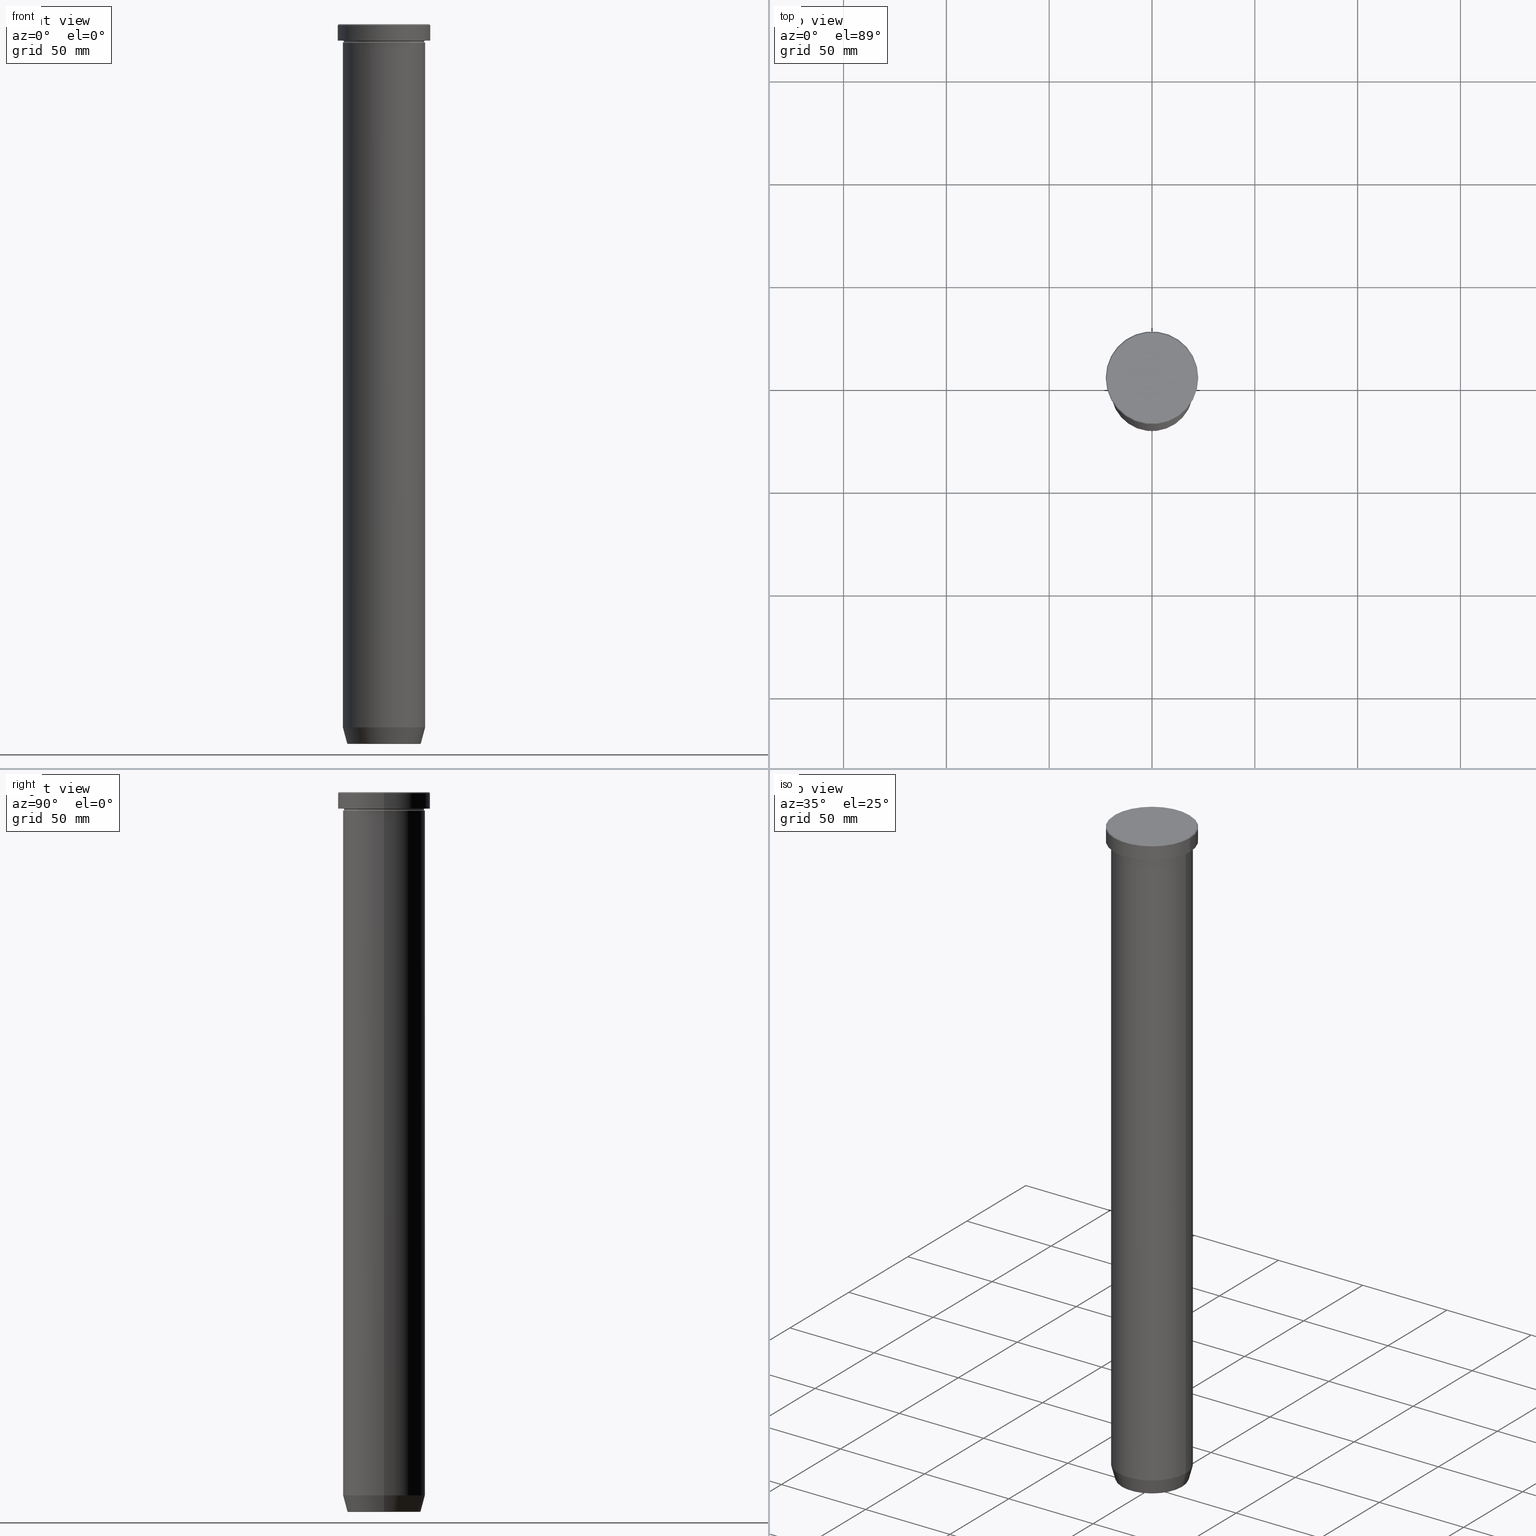
[diagram: canonical four-view strip — front | top / right | iso, engineering-drawing reading convention]
A machine part, canonical four-view strip (front | top / right | iso — engineering-drawing reading convention). The complete STEP part file that produces these views, byte-faithful:
ISO-10303-21;
HEADER;
FILE_DESCRIPTION (( 'STEP AP203' ),
    '1' );
FILE_NAME ('d82d.STEP',
    '2024-01-02T17:33:44',
    ( '' ),
    ( '' ),
    'SwSTEP 2.0',
    'SolidWorks 2019',
    '' );
FILE_SCHEMA (( 'CONFIG_CONTROL_DESIGN' ));
ENDSEC;

DATA;
#1 = CLOSED_SHELL ( 'NONE', ( #484, #367, #352, #125, #75, #54, #25, #116 ) ) ;
#2 = CIRCLE ( 'NONE', #387, 19.50000000000000000 ) ;
#3 = ORIENTED_EDGE ( 'NONE', *, *, #338, .F. ) ;
#4 = DATE_AND_TIME ( #55, #346 ) ;
#5 = CARTESIAN_POINT ( 'NONE',  ( 0.000000000000000000, 20.00000000000000000, -70.00000000000000000 ) ) ;
#6 = ADVANCED_FACE ( 'NONE', ( #50 ), #235, .F. ) ;
#7 = AXIS2_PLACEMENT_3D ( 'NONE', #592, #449, #589 ) ;
#8 = DIRECTION ( 'NONE',  ( -1.224646799147353207E-16, 1.000000000000000000, 0.000000000000000000 ) ) ;
#9 = DIRECTION ( 'NONE',  ( 0.000000000000000000, 0.000000000000000000, -1.000000000000000000 ) ) ;
#10 = ORIENTED_EDGE ( 'NONE', *, *, #45, .T. ) ;
#11 = PERSON_AND_ORGANIZATION_ROLE ( 'creator' ) ;
#12 = DIRECTION ( 'NONE',  ( -0.000000000000000000, -0.000000000000000000, 1.000000000000000000 ) ) ;
#13 = AXIS2_PLACEMENT_3D ( 'NONE', #409, #333, #94 ) ;
#14 = ADVANCED_FACE ( 'NONE', ( #391 ), #388, .T. ) ;
#15 = CALENDAR_DATE ( 2024, 2, 1 ) ;
#16 = CARTESIAN_POINT ( 'NONE',  ( 0.000000000000000000, 0.000000000000000000, -350.0000000000000568 ) ) ;
#17 = CONICAL_SURFACE ( 'NONE', #328, 21.99999999999997868, 0.7853981633974482790 ) ;
#18 = DIRECTION ( 'NONE',  ( -0.000000000000000000, -0.000000000000000000, 1.000000000000000000 ) ) ;
#19 = SHAPE_DEFINITION_REPRESENTATION ( #24, #594 ) ;
#20 = FACE_OUTER_BOUND ( 'NONE', #478, .T. ) ;
#21 = DIRECTION ( 'NONE',  ( -0.000000000000000000, -0.000000000000000000, 1.000000000000000000 ) ) ;
#22 = CONICAL_SURFACE ( 'NONE', #395, 17.85640646055101399, 0.2617993877991499629 ) ;
#23 = CARTESIAN_POINT ( 'NONE',  ( 0.000000000000000000, 0.000000000000000000, 0.000000000000000000 ) ) ;
#24 = PRODUCT_DEFINITION_SHAPE ( 'NONE', 'NONE',  #312 ) ;
#25 = ADVANCED_FACE ( 'NONE', ( #522 ), #124, .F. ) ;
#26 = CC_DESIGN_APPROVAL ( #390, ( #153 ) ) ;
#27 = CARTESIAN_POINT ( 'NONE',  ( 20.00000000000000355, 0.000000000000000000, 0.000000000000000000 ) ) ;
#28 = FACE_OUTER_BOUND ( 'NONE', #51, .T. ) ;
#29 = PERSON_AND_ORGANIZATION ( #422, #513 ) ;
#30 = ADVANCED_FACE ( 'NONE', ( #588 ), #113, .F. ) ;
#31 = ORIENTED_EDGE ( 'NONE', *, *, #212, .T. ) ;
#32 = CARTESIAN_POINT ( 'NONE',  ( 0.000000000000000000, 0.000000000000000000, -8.499999999999996447 ) ) ;
#33 = AXIS2_PLACEMENT_3D ( 'NONE', #59, #132, #240 ) ;
#34 = ORIENTED_EDGE ( 'NONE', *, *, #274, .F. ) ;
#35 = AXIS2_PLACEMENT_3D ( 'NONE', #36, #310, #318 ) ;
#36 = CARTESIAN_POINT ( 'NONE',  ( 0.000000000000000000, 0.000000000000000000, -342.0000000000000000 ) ) ;
#37 = CIRCLE ( 'NONE', #127, 20.00000000000000000 ) ;
#38 = AXIS2_PLACEMENT_3D ( 'NONE', #596, #468, #555 ) ;
#39 = ORIENTED_EDGE ( 'NONE', *, *, #530, .F. ) ;
#40 = DIRECTION ( 'NONE',  ( -0.000000000000000000, -0.000000000000000000, 1.000000000000000000 ) ) ;
#41 = ORIENTED_EDGE ( 'NONE', *, *, #491, .T. ) ;
#42 = ORIENTED_EDGE ( 'NONE', *, *, #587, .T. ) ;
#43 = LINE ( 'NONE', #224, #227 ) ;
#44 = ORIENTED_EDGE ( 'NONE', *, *, #109, .F. ) ;
#45 = EDGE_CURVE ( 'NONE', #420, #548, #532, .T. ) ;
#46 =( NAMED_UNIT ( * ) SI_UNIT ( $, .STERADIAN. ) SOLID_ANGLE_UNIT ( ) );
#47 = AXIS2_PLACEMENT_3D ( 'NONE', #598, #549, #415 ) ;
#48 = CARTESIAN_POINT ( 'NONE',  ( 21.99999999999997868, 2.724839128102859413E-15, 0.000000000000000000 ) ) ;
#49 = CIRCLE ( 'NONE', #512, 20.00000000000000000 ) ;
#50 = FACE_OUTER_BOUND ( 'NONE', #521, .T. ) ;
#51 = EDGE_LOOP ( 'NONE', ( #403, #275, #431, #372 ) ) ;
#52 = CARTESIAN_POINT ( 'NONE',  ( 20.00000000000000000, 2.449293598294706513E-15, -8.499999999999998224 ) ) ;
#53 = DIRECTION ( 'NONE',  ( -0.7071067811865474617, 0.000000000000000000, -0.7071067811865474617 ) ) ;
#54 = ADVANCED_FACE ( 'NONE', ( #418 ), #296, .T. ) ;
#55 = CALENDAR_DATE ( 2024, 2, 1 ) ;
#56 = DIRECTION ( 'NONE',  ( -0.000000000000000000, -0.000000000000000000, 1.000000000000000000 ) ) ;
#57 = CIRCLE ( 'NONE', #464, 17.47274296656153680 ) ;
#58 = DIRECTION ( 'NONE',  ( -1.000000000000000000, -1.224646799147349509E-16, 0.000000000000000000 ) ) ;
#59 = CARTESIAN_POINT ( 'NONE',  ( 0.000000000000000000, 0.000000000000000000, -7.999999999999998224 ) ) ;
#60 = ORIENTED_EDGE ( 'NONE', *, *, #542, .F. ) ;
#61 = DIRECTION ( 'NONE',  ( -1.000000000000000000, 0.000000000000000000, 0.000000000000000000 ) ) ;
#62 = CARTESIAN_POINT ( 'NONE',  ( 0.000000000000000000, 0.000000000000000000, 0.000000000000000000 ) ) ;
#63 = VERTEX_POINT ( 'NONE', #281 ) ;
#64 = EDGE_LOOP ( 'NONE', ( #306, #516, #213, #96 ) ) ;
#65 = FACE_OUTER_BOUND ( 'NONE', #181, .T. ) ;
#66 = ORIENTED_EDGE ( 'NONE', *, *, #45, .F. ) ;
#67 = DIRECTION ( 'NONE',  ( -0.000000000000000000, -0.000000000000000000, 1.000000000000000000 ) ) ;
#68 = EDGE_CURVE ( 'NONE', #151, #63, #553, .T. ) ;
#69 = ORIENTED_EDGE ( 'NONE', *, *, #359, .T. ) ;
#70 = DIRECTION ( 'NONE',  ( -1.000000000000000000, 0.000000000000000000, 0.000000000000000000 ) ) ;
#71 = CIRCLE ( 'NONE', #190, 0.5000000000000004441 ) ;
#72 = CARTESIAN_POINT ( 'NONE',  ( 17.95570587970608045, 0.000000000000000000, -349.6294095225512706 ) ) ;
#73 = VERTEX_POINT ( 'NONE', #335 ) ;
#74 = CARTESIAN_POINT ( 'NONE',  ( -20.00000000000000355, 2.449293598294706907E-15, 0.000000000000000000 ) ) ;
#75 = ADVANCED_FACE ( 'NONE', ( #330 ), #558, .T. ) ;
#76 = CARTESIAN_POINT ( 'NONE',  ( 20.00000000000000000, 0.000000000000000000, -70.00000000000000000 ) ) ;
#77 = DATE_TIME_ROLE ( 'classification_date' ) ;
#78 = ORIENTED_EDGE ( 'NONE', *, *, #458, .T. ) ;
#79 = FACE_OUTER_BOUND ( 'NONE', #457, .T. ) ;
#80 = CIRCLE ( 'NONE', #209, 20.00000000000000000 ) ;
#81 = CARTESIAN_POINT ( 'NONE',  ( 17.47274296656153680, 0.000000000000000000, -350.0000000000000568 ) ) ;
#82 = LOCAL_TIME ( 18, 33, 44.00000000000000000, #140 ) ;
#83 = DIRECTION ( 'NONE',  ( 1.000000000000000000, 0.000000000000000000, 0.000000000000000000 ) ) ;
#84 = EDGE_CURVE ( 'NONE', #147, #99, #188, .T. ) ;
#85 = ORIENTED_EDGE ( 'NONE', *, *, #450, .F. ) ;
#86 = DIRECTION ( 'NONE',  ( -1.000000000000000000, 0.000000000000000000, 0.000000000000000000 ) ) ;
#87 = VECTOR ( 'NONE', #477, 1000.000000000000000 ) ;
#88 = ORIENTED_EDGE ( 'NONE', *, *, #248, .F. ) ;
#89 = CARTESIAN_POINT ( 'NONE',  ( 0.000000000000000000, 0.000000000000000000, -342.0000000000000000 ) ) ;
#90 = VECTOR ( 'NONE', #421, 1000.000000000000000 ) ;
#91 = DIRECTION ( 'NONE',  ( -0.000000000000000000, -0.000000000000000000, 1.000000000000000000 ) ) ;
#92 = EDGE_CURVE ( 'NONE', #128, #547, #159, .T. ) ;
#93 = APPROVAL_ROLE ( '' ) ;
#94 = DIRECTION ( 'NONE',  ( 1.000000000000000000, 0.000000000000000000, 0.000000000000000000 ) ) ;
#95 = AXIS2_PLACEMENT_3D ( 'NONE', #230, #552, #425 ) ;
#96 = ORIENTED_EDGE ( 'NONE', *, *, #518, .T. ) ;
#97 = CARTESIAN_POINT ( 'NONE',  ( 22.50000000000000000, 0.000000000000000000, -7.999999999999998224 ) ) ;
#98 = CARTESIAN_POINT ( 'NONE',  ( 0.000000000000000000, 0.000000000000000000, -8.499999999999998224 ) ) ;
#99 = VERTEX_POINT ( 'NONE', #195 ) ;
#100 = ADVANCED_FACE ( 'NONE', ( #141 ), #236, .T. ) ;
#101 = ORIENTED_EDGE ( 'NONE', *, *, #568, .F. ) ;
#102 = DIRECTION ( 'NONE',  ( -0.000000000000000000, -0.000000000000000000, 1.000000000000000000 ) ) ;
#103 = CC_DESIGN_DATE_AND_TIME_ASSIGNMENT ( #487, #77, ( #153 ) ) ;
#104 = AXIS2_PLACEMENT_3D ( 'NONE', #304, #18, #342 ) ;
#105 = ORIENTED_EDGE ( 'NONE', *, *, #378, .T. ) ;
#106 = PERSON_AND_ORGANIZATION_ROLE ( 'design_supplier' ) ;
#107 = DIRECTION ( 'NONE',  ( -0.000000000000000000, -0.000000000000000000, 1.000000000000000000 ) ) ;
#108 = VECTOR ( 'NONE', #506, 1000.000000000000114 ) ;
#109 = EDGE_CURVE ( 'NONE', #380, #451, #263, .T. ) ;
#110 = CARTESIAN_POINT ( 'NONE',  ( 0.000000000000000000, 0.000000000000000000, -7.999999999999998224 ) ) ;
#111 = DIRECTION ( 'NONE',  ( -1.000000000000000000, 0.000000000000000000, 0.000000000000000000 ) ) ;
#112 = EDGE_LOOP ( 'NONE', ( #226, #414 ) ) ;
#113 = TOROIDAL_SURFACE ( 'NONE', #200, 20.00000000000000000, 0.5000000000000000000 ) ;
#114 = AXIS2_PLACEMENT_3D ( 'NONE', #511, #499, #243 ) ;
#115 = DIRECTION ( 'NONE',  ( -0.000000000000000000, -0.000000000000000000, 1.000000000000000000 ) ) ;
#116 = ADVANCED_FACE ( 'NONE', ( #199 ), #544, .T. ) ;
#117 = SECURITY_CLASSIFICATION_LEVEL ( 'unclassified' ) ;
#118 = CARTESIAN_POINT ( 'NONE',  ( 0.000000000000000000, 0.000000000000000000, -8.499999999999998224 ) ) ;
#119 = CARTESIAN_POINT ( 'NONE',  ( -20.00000000000000000, 0.000000000000000000, -7.999999999999998224 ) ) ;
#120 = EDGE_LOOP ( 'NONE', ( #569, #276, #44, #197 ) ) ;
#121 = EDGE_LOOP ( 'NONE', ( #406, #31 ) ) ;
#122 = DIRECTION ( 'NONE',  ( 1.000000000000000000, 0.000000000000000000, 0.000000000000000000 ) ) ;
#123 = AXIS2_PLACEMENT_3D ( 'NONE', #278, #192, #507 ) ;
#124 = PLANE ( 'NONE',  #201 ) ;
#125 = ADVANCED_FACE ( 'NONE', ( #366 ), #599, .F. ) ;
#126 = CARTESIAN_POINT ( 'NONE',  ( 0.000000000000000000, 0.000000000000000000, 0.000000000000000000 ) ) ;
#127 = AXIS2_PLACEMENT_3D ( 'NONE', #268, #483, #169 ) ;
#128 = VERTEX_POINT ( 'NONE', #189 ) ;
#129 =( NAMED_UNIT ( * ) PLANE_ANGLE_UNIT ( ) SI_UNIT ( $, .RADIAN. ) );
#130 = APPLICATION_PROTOCOL_DEFINITION ( 'international standard', 'config_control_design', 1994, #453 ) ;
#131 = EDGE_LOOP ( 'NONE', ( #60, #299, #497, #466 ) ) ;
#132 = DIRECTION ( 'NONE',  ( -0.000000000000000000, -0.000000000000000000, 1.000000000000000000 ) ) ;
#133 = EDGE_CURVE ( 'NONE', #267, #265, #377, .T. ) ;
#134 = AXIS2_PLACEMENT_3D ( 'NONE', #543, #447, #122 ) ;
#135 = ORIENTED_EDGE ( 'NONE', *, *, #241, .F. ) ;
#136 = TOROIDAL_SURFACE ( 'NONE', #467, 20.00000000000000000, 0.5000000000000000000 ) ;
#137 = DIRECTION ( 'NONE',  ( 1.000000000000000000, 0.000000000000000000, 0.000000000000000000 ) ) ;
#138 = LOCAL_TIME ( 18, 33, 44.00000000000000000, #585 ) ;
#139 = ORIENTED_EDGE ( 'NONE', *, *, #386, .T. ) ;
#140 = COORDINATED_UNIVERSAL_TIME_OFFSET ( 1, 0, .AHEAD. ) ;
#141 = FACE_OUTER_BOUND ( 'NONE', #112, .T. ) ;
#142 = ORIENTED_EDGE ( 'NONE', *, *, #262, .F. ) ;
#143 = CARTESIAN_POINT ( 'NONE',  ( 17.85640646055101399, 0.000000000000000000, -350.0000000000000568 ) ) ;
#144 = CARTESIAN_POINT ( 'NONE',  ( 0.000000000000000000, 0.000000000000000000, 0.000000000000000000 ) ) ;
#145 = AXIS2_PLACEMENT_3D ( 'NONE', #254, #21, #208 ) ;
#146 = AXIS2_PLACEMENT_3D ( 'NONE', #214, #394, #314 ) ;
#147 = VERTEX_POINT ( 'NONE', #273 ) ;
#148 = EDGE_CURVE ( 'NONE', #364, #362, #284, .T. ) ;
#149 = DATE_AND_TIME ( #294, #138 ) ;
#150 = CARTESIAN_POINT ( 'NONE',  ( 0.000000000000000000, 0.000000000000000000, 0.000000000000000000 ) ) ;
#151 = VERTEX_POINT ( 'NONE', #97 ) ;
#152 = CIRCLE ( 'NONE', #353, 22.50000000000000000 ) ;
#153 = SECURITY_CLASSIFICATION ( '', '', #117 ) ;
#154 = COORDINATED_UNIVERSAL_TIME_OFFSET ( 1, 0, .AHEAD. ) ;
#155 = CARTESIAN_POINT ( 'NONE',  ( 0.000000000000000000, 22.50000000000000000, -7.999999999999998224 ) ) ;
#156 = ORIENTED_EDGE ( 'NONE', *, *, #293, .T. ) ;
#157 = LINE ( 'NONE', #343, #87 ) ;
#158 = EDGE_CURVE ( 'NONE', #178, #364, #336, .T. ) ;
#159 = CIRCLE ( 'NONE', #326, 0.5000000000000004441 ) ;
#160 = ORIENTED_EDGE ( 'NONE', *, *, #133, .F. ) ;
#161 = DIRECTION ( 'NONE',  ( 0.000000000000000000, -1.000000000000000000, 0.000000000000000000 ) ) ;
#162 = ORIENTED_EDGE ( 'NONE', *, *, #168, .T. ) ;
#163 = DIRECTION ( 'NONE',  ( 1.000000000000000000, 0.000000000000000000, 0.000000000000000000 ) ) ;
#164 = PRODUCT ( 'd82d', 'd82d', '', ( #509 ) ) ;
#165 = EDGE_LOOP ( 'NONE', ( #490, #523, #160, #347 ) ) ;
#166 = DIRECTION ( 'NONE',  ( 1.000000000000000000, 0.000000000000000000, 0.000000000000000000 ) ) ;
#167 = CIRCLE ( 'NONE', #438, 21.99999999999997868 ) ;
#168 = EDGE_CURVE ( 'NONE', #364, #178, #167, .T. ) ;
#169 = DIRECTION ( 'NONE',  ( 1.000000000000000000, 0.000000000000000000, 0.000000000000000000 ) ) ;
#170 = DATE_TIME_ROLE ( 'creation_date' ) ;
#171 = CC_DESIGN_APPROVAL ( #203, ( #289 ) ) ;
#172 = ORIENTED_EDGE ( 'NONE', *, *, #92, .T. ) ;
#173 = CYLINDRICAL_SURFACE ( 'NONE', #217, 20.00000000000000355 ) ;
#174 = ORIENTED_EDGE ( 'NONE', *, *, #222, .T. ) ;
#175 = CARTESIAN_POINT ( 'NONE',  ( 0.000000000000000000, 0.000000000000000000, -349.6294095225512706 ) ) ;
#176 = CARTESIAN_POINT ( 'NONE',  ( 0.000000000000000000, 3.673940397442060124E-14, -350.0000000000000568 ) ) ;
#177 = ADVANCED_FACE ( 'NONE', ( #376 ), #202, .T. ) ;
#178 = VERTEX_POINT ( 'NONE', #48 ) ;
#179 = CARTESIAN_POINT ( 'NONE',  ( -21.99999999999997868, 0.000000000000000000, 0.000000000000000000 ) ) ;
#180 = AXIS2_PLACEMENT_3D ( 'NONE', #5, #505, #374 ) ;
#181 = EDGE_LOOP ( 'NONE', ( #162, #361 ) ) ;
#182 = PERSON_AND_ORGANIZATION ( #422, #513 ) ;
#183 = DIRECTION ( 'NONE',  ( 0.000000000000000000, -0.000000000000000000, 1.000000000000000000 ) ) ;
#184 = EDGE_CURVE ( 'NONE', #221, #420, #597, .T. ) ;
#185 = PERSON_AND_ORGANIZATION_ROLE ( 'design_owner' ) ;
#186 = EDGE_LOOP ( 'NONE', ( #41, #503, #357, #3 ) ) ;
#187 = CARTESIAN_POINT ( 'NONE',  ( 0.000000000000000000, 0.000000000000000000, -350.0000000000000568 ) ) ;
#188 = CIRCLE ( 'NONE', #566, 20.00000000000000000 ) ;
#189 = CARTESIAN_POINT ( 'NONE',  ( 19.50000000000000000, 0.000000000000000000, -8.499999999999996447 ) ) ;
#190 = AXIS2_PLACEMENT_3D ( 'NONE', #586, #355, #541 ) ;
#191 = PERSON_AND_ORGANIZATION ( #422, #513 ) ;
#192 = DIRECTION ( 'NONE',  ( -0.000000000000000000, -0.000000000000000000, 1.000000000000000000 ) ) ;
#193 = EDGE_LOOP ( 'NONE', ( #559, #69, #42, #34 ) ) ;
#194 = DIRECTION ( 'NONE',  ( 1.000000000000000000, 0.000000000000000000, 0.000000000000000000 ) ) ;
#195 = CARTESIAN_POINT ( 'NONE',  ( 20.00000000000000000, 0.000000000000000000, -70.00000000000000000 ) ) ;
#196 = EDGE_CURVE ( 'NONE', #547, #539, #454, .T. ) ;
#197 = ORIENTED_EDGE ( 'NONE', *, *, #222, .F. ) ;
#198 = APPROVAL_ROLE ( '' ) ;
#199 = FACE_OUTER_BOUND ( 'NONE', #561, .T. ) ;
#200 = AXIS2_PLACEMENT_3D ( 'NONE', #118, #486, #412 ) ;
#201 = AXIS2_PLACEMENT_3D ( 'NONE', #176, #183, #448 ) ;
#202 = CONICAL_SURFACE ( 'NONE', #534, 21.99999999999997868, 0.7853981633974482790 ) ;
#203 = APPROVAL ( #572, 'NEUR�EN�' ) ;
#204 = DIRECTION ( 'NONE',  ( 1.000000000000000000, 0.000000000000000000, 0.000000000000000000 ) ) ;
#205 = CALENDAR_DATE ( 2024, 2, 1 ) ;
#206 = APPROVAL ( #504, 'NEUR�EN�' ) ;
#207 = DIRECTION ( 'NONE',  ( 1.000000000000000000, 0.000000000000000000, 0.000000000000000000 ) ) ;
#208 = DIRECTION ( 'NONE',  ( 1.000000000000000000, 0.000000000000000000, 0.000000000000000000 ) ) ;
#209 = AXIS2_PLACEMENT_3D ( 'NONE', #253, #435, #385 ) ;
#210 = CARTESIAN_POINT ( 'NONE',  ( -20.00000000000000000, 0.000000000000000000, -8.499999999999998224 ) ) ;
#211 = CARTESIAN_POINT ( 'NONE',  ( 0.000000000000000000, 0.000000000000000000, -8.999999999999998224 ) ) ;
#212 = EDGE_CURVE ( 'NONE', #451, #380, #575, .T. ) ;
#213 = ORIENTED_EDGE ( 'NONE', *, *, #274, .T. ) ;
#214 = CARTESIAN_POINT ( 'NONE',  ( 0.000000000000000000, 0.000000000000000000, -350.0000000000000568 ) ) ;
#215 = COORDINATED_UNIVERSAL_TIME_OFFSET ( 1, 0, .AHEAD. ) ;
#216 = AXIS2_PLACEMENT_3D ( 'NONE', #577, #396, #540 ) ;
#217 = AXIS2_PLACEMENT_3D ( 'NONE', #354, #488, #83 ) ;
#218 = EDGE_LOOP ( 'NONE', ( #535, #246, #573, #255 ) ) ;
#219 = DIRECTION ( 'NONE',  ( -0.000000000000000000, -0.000000000000000000, 1.000000000000000000 ) ) ;
#220 = DIRECTION ( 'NONE',  ( 1.000000000000000000, 0.000000000000000000, 0.000000000000000000 ) ) ;
#221 = VERTEX_POINT ( 'NONE', #580 ) ;
#222 = EDGE_CURVE ( 'NONE', #479, #380, #365, .T. ) ;
#223 = DIRECTION ( 'NONE',  ( 1.000000000000000000, 0.000000000000000000, 0.000000000000000000 ) ) ;
#224 = CARTESIAN_POINT ( 'NONE',  ( 21.99999999999997868, 2.694222958124174048E-15, 0.000000000000000000 ) ) ;
#225 = CIRCLE ( 'NONE', #344, 19.50000000000000000 ) ;
#226 = ORIENTED_EDGE ( 'NONE', *, *, #491, .F. ) ;
#227 = VECTOR ( 'NONE', #350, 1000.000000000000114 ) ;
#228 = ADVANCED_FACE ( 'NONE', ( #525, #20 ), #389, .T. ) ;
#229 = APPROVAL_PERSON_ORGANIZATION ( #321, #206, #93 ) ;
#230 = CARTESIAN_POINT ( 'NONE',  ( 0.000000000000000000, 0.000000000000000000, -349.5000000000000568 ) ) ;
#231 = EDGE_LOOP ( 'NONE', ( #39, #444, #174, #301 ) ) ;
#232 = CARTESIAN_POINT ( 'NONE',  ( -20.00000000000000000, 2.449293598294706513E-15, -70.00000000000000000 ) ) ;
#233 = DIRECTION ( 'NONE',  ( 1.000000000000000000, 0.000000000000000000, 0.000000000000000000 ) ) ;
#234 = APPROVAL_DATE_TIME ( #4, #206 ) ;
#235 = TOROIDAL_SURFACE ( 'NONE', #145, 20.00000000000000000, 0.5000000000000000000 ) ;
#236 = PLANE ( 'NONE',  #180 ) ;
#237 = AXIS2_PLACEMENT_3D ( 'NONE', #211, #472, #207 ) ;
#238 = EDGE_LOOP ( 'NONE', ( #501, #311, #269, #527 ) ) ;
#239 = DIRECTION ( 'NONE',  ( -0.000000000000000000, -0.000000000000000000, 1.000000000000000000 ) ) ;
#240 = DIRECTION ( 'NONE',  ( 1.000000000000000000, 0.000000000000000000, 0.000000000000000000 ) ) ;
#241 = EDGE_CURVE ( 'NONE', #128, #479, #2, .T. ) ;
#242 = CC_DESIGN_APPROVAL ( #206, ( #312 ) ) ;
#243 = DIRECTION ( 'NONE',  ( -1.000000000000000000, 0.000000000000000000, -0.000000000000000000 ) ) ;
#244 = PERSON_AND_ORGANIZATION ( #422, #513 ) ;
#245 = DIRECTION ( 'NONE',  ( 0.000000000000000000, 0.000000000000000000, -1.000000000000000000 ) ) ;
#246 = ORIENTED_EDGE ( 'NONE', *, *, #568, .T. ) ;
#247 = CIRCLE ( 'NONE', #146, 17.47274296656153680 ) ;
#248 = EDGE_CURVE ( 'NONE', #479, #128, #225, .T. ) ;
#249 = ORIENTED_EDGE ( 'NONE', *, *, #196, .T. ) ;
#250 = DIRECTION ( 'NONE',  ( 0.000000000000000000, -0.000000000000000000, 1.000000000000000000 ) ) ;
#251 = CC_DESIGN_PERSON_AND_ORGANIZATION_ASSIGNMENT ( #383, #106, ( #289 ) ) ;
#252 = PERSON_AND_ORGANIZATION_ROLE ( 'classification_officer' ) ;
#253 = CARTESIAN_POINT ( 'NONE',  ( 0.000000000000000000, 0.000000000000000000, -70.00000000000000000 ) ) ;
#254 = CARTESIAN_POINT ( 'NONE',  ( 0.000000000000000000, 0.000000000000000000, -8.499999999999996447 ) ) ;
#255 = ORIENTED_EDGE ( 'NONE', *, *, #348, .F. ) ;
#256 = CARTESIAN_POINT ( 'NONE',  ( 22.50000000000000000, 0.000000000000000000, 0.000000000000000000 ) ) ;
#257 = AXIS2_PLACEMENT_3D ( 'NONE', #428, #161, #520 ) ;
#258 = LINE ( 'NONE', #256, #519 ) ;
#259 = EDGE_CURVE ( 'NONE', #441, #267, #272, .T. ) ;
#260 = DIRECTION ( 'NONE',  ( 1.000000000000000000, 0.000000000000000000, 0.000000000000000000 ) ) ;
#261 = DIRECTION ( 'NONE',  ( -0.000000000000000000, -0.000000000000000000, 1.000000000000000000 ) ) ;
#262 = EDGE_CURVE ( 'NONE', #63, #151, #473, .T. ) ;
#263 = CIRCLE ( 'NONE', #533, 20.00000000000000000 ) ;
#264 = CYLINDRICAL_SURFACE ( 'NONE', #134, 22.50000000000000000 ) ;
#265 = VERTEX_POINT ( 'NONE', #302 ) ;
#266 = CARTESIAN_POINT ( 'NONE',  ( -22.50000000000000000, 2.755455298081544778E-15, 0.000000000000000000 ) ) ;
#267 = VERTEX_POINT ( 'NONE', #72 ) ;
#268 = CARTESIAN_POINT ( 'NONE',  ( 0.000000000000000000, 0.000000000000000000, -70.00000000000000000 ) ) ;
#269 = ORIENTED_EDGE ( 'NONE', *, *, #587, .F. ) ;
#270 = CARTESIAN_POINT ( 'NONE',  ( -20.00000000000000000, 2.449293598294706513E-15, 0.000000000000000000 ) ) ;
#271 = AXIS2_PLACEMENT_3D ( 'NONE', #155, #392, #381 ) ;
#272 = CIRCLE ( 'NONE', #257, 0.5000000000000004441 ) ;
#273 = CARTESIAN_POINT ( 'NONE',  ( -20.00000000000000000, 2.449293598294706513E-15, -70.00000000000000000 ) ) ;
#274 = EDGE_CURVE ( 'NONE', #151, #73, #258, .T. ) ;
#275 = ORIENTED_EDGE ( 'NONE', *, *, #168, .F. ) ;
#276 = ORIENTED_EDGE ( 'NONE', *, *, #530, .T. ) ;
#277 = DIRECTION ( 'NONE',  ( 0.000000000000000000, 0.000000000000000000, -1.000000000000000000 ) ) ;
#278 = CARTESIAN_POINT ( 'NONE',  ( 0.000000000000000000, 0.000000000000000000, -349.6294095225512706 ) ) ;
#279 = ORIENTED_EDGE ( 'NONE', *, *, #133, .T. ) ;
#280 = FACE_OUTER_BOUND ( 'NONE', #186, .T. ) ;
#281 = CARTESIAN_POINT ( 'NONE',  ( -22.50000000000000000, 2.755455298081544778E-15, -7.999999999999998224 ) ) ;
#283 = ORIENTED_EDGE ( 'NONE', *, *, #331, .T. ) ;
#282 = ADVANCED_FACE ( 'NONE', ( #440 ), #446, .F. ) ;
#284 = LINE ( 'NONE', #288, #285 ) ;
#285 = VECTOR ( 'NONE', #53, 1000.000000000000114 ) ;
#286 = ORIENTED_EDGE ( 'NONE', *, *, #92, .F. ) ;
#287 = CARTESIAN_POINT ( 'NONE',  ( -20.00000000000000355, 2.449293598294706907E-15, -342.0000000000000000 ) ) ;
#288 = CARTESIAN_POINT ( 'NONE',  ( -21.99999999999997868, 0.000000000000000000, 0.000000000000000000 ) ) ;
#289 = PRODUCT_DEFINITION_FORMATION_WITH_SPECIFIED_SOURCE ( 'LIBOVOLN�', '', #164, .NOT_KNOWN. ) ;
#290 = ORIENTED_EDGE ( 'NONE', *, *, #68, .F. ) ;
#291 = PERSON_AND_ORGANIZATION ( #422, #513 ) ;
#292 = DIRECTION ( 'NONE',  ( 1.000000000000000000, 0.000000000000000000, 0.000000000000000000 ) ) ;
#293 = EDGE_CURVE ( 'NONE', #265, #579, #295, .T. ) ;
#294 = CALENDAR_DATE ( 2024, 2, 1 ) ;
#295 = LINE ( 'NONE', #349, #305 ) ;
#296 = CONICAL_SURFACE ( 'NONE', #445, 17.85640646055101399, 0.2617993877991499629 ) ;
#297 = VECTOR ( 'NONE', #261, 1000.000000000000000 ) ;
#298 = ORIENTED_EDGE ( 'NONE', *, *, #293, .F. ) ;
#299 = ORIENTED_EDGE ( 'NONE', *, *, #84, .T. ) ;
#300 = DIRECTION ( 'NONE',  ( 1.000000000000000000, 0.000000000000000000, 0.000000000000000000 ) ) ;
#301 = ORIENTED_EDGE ( 'NONE', *, *, #212, .F. ) ;
#302 = CARTESIAN_POINT ( 'NONE',  ( -17.95570587970608045, 2.324116685748021371E-15, -349.6294095225512706 ) ) ;
#303 = ADVANCED_FACE ( 'NONE', ( #514 ), #437, .T. ) ;
#304 = CARTESIAN_POINT ( 'NONE',  ( 0.000000000000000000, 0.000000000000000000, -7.999999999999998224 ) ) ;
#305 = VECTOR ( 'NONE', #481, 1000.000000000000114 ) ;
#306 = ORIENTED_EDGE ( 'NONE', *, *, #359, .F. ) ;
#307 = ORIENTED_EDGE ( 'NONE', *, *, #331, .F. ) ;
#308 = CARTESIAN_POINT ( 'NONE',  ( 0.000000000000000000, 0.000000000000000000, -0.5000000000000213163 ) ) ;
#309 = CIRCLE ( 'NONE', #456, 20.00000000000000355 ) ;
#310 = DIRECTION ( 'NONE',  ( -0.000000000000000000, -0.000000000000000000, 1.000000000000000000 ) ) ;
#311 = ORIENTED_EDGE ( 'NONE', *, *, #411, .T. ) ;
#312 = PRODUCT_DEFINITION ( 'NEZN�M�', '', #289, #564 ) ;
#313 = DATE_AND_TIME ( #205, #82 ) ;
#314 = DIRECTION ( 'NONE',  ( 1.000000000000000000, 0.000000000000000000, 0.000000000000000000 ) ) ;
#315 = EDGE_LOOP ( 'NONE', ( #298, #78, #550, #101 ) ) ;
#316 = CLOSED_SHELL ( 'NONE', ( #177, #30, #6, #581, #14, #100, #322, #393, #228, #303, #508, #282, #470 ) ) ;
#317 = AXIS2_PLACEMENT_3D ( 'NONE', #62, #250, #300 ) ;
#318 = DIRECTION ( 'NONE',  ( 1.000000000000000000, 0.000000000000000000, 0.000000000000000000 ) ) ;
#319 = AXIS2_PLACEMENT_3D ( 'NONE', #52, #8, #58 ) ;
#320 = DIRECTION ( 'NONE',  ( 0.000000000000000000, 0.000000000000000000, -1.000000000000000000 ) ) ;
#321 = PERSON_AND_ORGANIZATION ( #422, #513 ) ;
#322 = ADVANCED_FACE ( 'NONE', ( #65 ), #345, .T. ) ;
#323 = VERTEX_POINT ( 'NONE', #384 ) ;
#324 = EDGE_LOOP ( 'NONE', ( #436, #135, #172, #249 ) ) ;
#325 = CYLINDRICAL_SURFACE ( 'NONE', #47, 20.00000000000000000 ) ;
#326 = AXIS2_PLACEMENT_3D ( 'NONE', #339, #563, #9 ) ;
#327 = CARTESIAN_POINT ( 'NONE',  ( 0.000000000000000000, 0.000000000000000000, -70.00000000000000000 ) ) ;
#328 = AXIS2_PLACEMENT_3D ( 'NONE', #126, #320, #485 ) ;
#329 = CARTESIAN_POINT ( 'NONE',  ( 20.00000000000000000, 0.000000000000000000, -8.999999999999998224 ) ) ;
#330 = FACE_OUTER_BOUND ( 'NONE', #218, .T. ) ;
#331 = EDGE_CURVE ( 'NONE', #441, #323, #57, .T. ) ;
#332 = CARTESIAN_POINT ( 'NONE',  ( -20.00000000000000000, 2.449293598294706513E-15, -8.999999999999998224 ) ) ;
#333 = DIRECTION ( 'NONE',  ( -0.000000000000000000, -0.000000000000000000, 1.000000000000000000 ) ) ;
#334 = ORIENTED_EDGE ( 'NONE', *, *, #426, .T. ) ;
#335 = CARTESIAN_POINT ( 'NONE',  ( 22.50000000000000000, 0.000000000000000000, -0.5000000000000213163 ) ) ;
#336 = CIRCLE ( 'NONE', #427, 21.99999999999997868 ) ;
#337 = PERSON_AND_ORGANIZATION ( #422, #513 ) ;
#338 = EDGE_CURVE ( 'NONE', #99, #547, #157, .T. ) ;
#339 = CARTESIAN_POINT ( 'NONE',  ( 20.00000000000000000, 0.000000000000000000, -8.499999999999996447 ) ) ;
#340 = MANIFOLD_SOLID_BREP ( 'Zaoblit4', #1 ) ;
#341 = APPROVAL_STATUS ( 'not_yet_approved' ) ;
#342 = DIRECTION ( 'NONE',  ( 1.000000000000000000, 0.000000000000000000, 0.000000000000000000 ) ) ;
#343 = CARTESIAN_POINT ( 'NONE',  ( 20.00000000000000000, 0.000000000000000000, 0.000000000000000000 ) ) ;
#344 = AXIS2_PLACEMENT_3D ( 'NONE', #517, #582, #163 ) ;
#345 = PLANE ( 'NONE',  #317 ) ;
#346 = LOCAL_TIME ( 18, 33, 44.00000000000000000, #461 ) ;
#347 = ORIENTED_EDGE ( 'NONE', *, *, #259, .F. ) ;
#348 = EDGE_CURVE ( 'NONE', #548, #420, #80, .T. ) ;
#349 = CARTESIAN_POINT ( 'NONE',  ( -17.85640646055101399, 2.186779101618792051E-15, -350.0000000000000568 ) ) ;
#350 = DIRECTION ( 'NONE',  ( 0.7071067811865474617, 8.659560562354932858E-17, -0.7071067811865474617 ) ) ;
#351 = FACE_OUTER_BOUND ( 'NONE', #324, .T. ) ;
#352 = ADVANCED_FACE ( 'NONE', ( #576 ), #173, .T. ) ;
#353 = AXIS2_PLACEMENT_3D ( 'NONE', #308, #277, #463 ) ;
#354 = CARTESIAN_POINT ( 'NONE',  ( 0.000000000000000000, 0.000000000000000000, 0.000000000000000000 ) ) ;
#355 = DIRECTION ( 'NONE',  ( 1.224646799147353207E-16, 1.000000000000000000, 0.000000000000000000 ) ) ;
#356 = ORIENTED_EDGE ( 'NONE', *, *, #259, .T. ) ;
#357 = ORIENTED_EDGE ( 'NONE', *, *, #196, .F. ) ;
#358 = CARTESIAN_POINT ( 'NONE',  ( 0.000000000000000000, 0.000000000000000000, -349.5000000000000568 ) ) ;
#359 = EDGE_CURVE ( 'NONE', #63, #362, #405, .T. ) ;
#360 = LINE ( 'NONE', #270, #90 ) ;
#361 = ORIENTED_EDGE ( 'NONE', *, *, #158, .T. ) ;
#362 = VERTEX_POINT ( 'NONE', #531 ) ;
#363 = DIRECTION ( 'NONE',  ( -0.000000000000000000, -0.000000000000000000, 1.000000000000000000 ) ) ;
#364 = VERTEX_POINT ( 'NONE', #179 ) ;
#365 = CIRCLE ( 'NONE', #404, 0.5000000000000004441 ) ;
#366 = FACE_OUTER_BOUND ( 'NONE', #482, .T. ) ;
#367 = ADVANCED_FACE ( 'NONE', ( #79 ), #22, .T. ) ;
#368 = AXIS2_PLACEMENT_3D ( 'NONE', #373, #551, #498 ) ;
#369 = PERSON_AND_ORGANIZATION_ROLE ( 'creator' ) ;
#370 = CARTESIAN_POINT ( 'NONE',  ( 0.000000000000000000, 0.000000000000000000, 0.000000000000000000 ) ) ;
#371 = APPLICATION_CONTEXT ( 'configuration controlled 3d designs of mechanical parts and assemblies' ) ;
#372 = ORIENTED_EDGE ( 'NONE', *, *, #518, .F. ) ;
#373 = CARTESIAN_POINT ( 'NONE',  ( 0.000000000000000000, 0.000000000000000000, -0.5000000000000213163 ) ) ;
#374 = DIRECTION ( 'NONE',  ( -1.000000000000000000, 0.000000000000000000, -0.000000000000000000 ) ) ;
#375 = APPROVAL_DATE_TIME ( #471, #203 ) ;
#376 = FACE_OUTER_BOUND ( 'NONE', #238, .T. ) ;
#377 = CIRCLE ( 'NONE', #123, 17.95570587970608045 ) ;
#378 = EDGE_CURVE ( 'NONE', #479, #539, #71, .T. ) ;
#379 = CIRCLE ( 'NONE', #368, 22.50000000000000000 ) ;
#380 = VERTEX_POINT ( 'NONE', #119 ) ;
#381 = DIRECTION ( 'NONE',  ( -1.000000000000000000, 0.000000000000000000, -0.000000000000000000 ) ) ;
#382 = LOCAL_TIME ( 18, 33, 44.00000000000000000, #154 ) ;
#383 = PERSON_AND_ORGANIZATION ( #422, #513 ) ;
#384 = CARTESIAN_POINT ( 'NONE',  ( -17.47274296656153680, 2.169366823916868503E-15, -350.0000000000000568 ) ) ;
#385 = DIRECTION ( 'NONE',  ( 1.000000000000000000, 0.000000000000000000, 0.000000000000000000 ) ) ;
#386 = EDGE_CURVE ( 'NONE', #323, #441, #247, .T. ) ;
#387 = AXIS2_PLACEMENT_3D ( 'NONE', #474, #480, #166 ) ;
#388 = CYLINDRICAL_SURFACE ( 'NONE', #216, 22.50000000000000000 ) ;
#389 = PLANE ( 'NONE',  #271 ) ;
#390 = APPROVAL ( #341, 'NEUR�EN�' ) ;
#391 = FACE_OUTER_BOUND ( 'NONE', #193, .T. ) ;
#392 = DIRECTION ( 'NONE',  ( 0.000000000000000000, 0.000000000000000000, -1.000000000000000000 ) ) ;
#393 = ADVANCED_FACE ( 'NONE', ( #583 ), #264, .T. ) ;
#394 = DIRECTION ( 'NONE',  ( 0.000000000000000000, 0.000000000000000000, -1.000000000000000000 ) ) ;
#395 = AXIS2_PLACEMENT_3D ( 'NONE', #400, #397, #223 ) ;
#396 = DIRECTION ( 'NONE',  ( -0.000000000000000000, -0.000000000000000000, 1.000000000000000000 ) ) ;
#397 = DIRECTION ( 'NONE',  ( -0.000000000000000000, -0.000000000000000000, 1.000000000000000000 ) ) ;
#398 = AXIS2_PLACEMENT_3D ( 'NONE', #358, #495, #260 ) ;
#399 = APPROVAL_PERSON_ORGANIZATION ( #29, #390, #515 ) ;
#400 = CARTESIAN_POINT ( 'NONE',  ( 0.000000000000000000, 0.000000000000000000, -350.0000000000000568 ) ) ;
#401 = FACE_OUTER_BOUND ( 'NONE', #165, .T. ) ;
#402 = EDGE_CURVE ( 'NONE', #221, #579, #584, .T. ) ;
#403 = ORIENTED_EDGE ( 'NONE', *, *, #411, .F. ) ;
#404 = AXIS2_PLACEMENT_3D ( 'NONE', #210, #528, #245 ) ;
#405 = LINE ( 'NONE', #266, #297 ) ;
#406 = ORIENTED_EDGE ( 'NONE', *, *, #109, .T. ) ;
#407 = CIRCLE ( 'NONE', #7, 0.5000000000000004441 ) ;
#408 = DIRECTION ( 'NONE',  ( 1.000000000000000000, 0.000000000000000000, 0.000000000000000000 ) ) ;
#409 = CARTESIAN_POINT ( 'NONE',  ( 0.000000000000000000, 0.000000000000000000, -70.00000000000000000 ) ) ;
#410 = ORIENTED_EDGE ( 'NONE', *, *, #595, .F. ) ;
#411 = EDGE_CURVE ( 'NONE', #178, #73, #43, .T. ) ;
#412 = DIRECTION ( 'NONE',  ( -1.000000000000000000, 0.000000000000000000, 0.000000000000000000 ) ) ;
#413 = ORIENTED_EDGE ( 'NONE', *, *, #433, .T. ) ;
#414 = ORIENTED_EDGE ( 'NONE', *, *, #84, .F. ) ;
#415 = DIRECTION ( 'NONE',  ( 1.000000000000000000, 0.000000000000000000, 0.000000000000000000 ) ) ;
#416 = AXIS2_PLACEMENT_3D ( 'NONE', #98, #571, #70 ) ;
#417 = PRODUCT_RELATED_PRODUCT_CATEGORY ( 'detail', '', ( #164 ) ) ;
#418 = FACE_OUTER_BOUND ( 'NONE', #315, .T. ) ;
#419 =( GEOMETRIC_REPRESENTATION_CONTEXT ( 3 ) GLOBAL_UNCERTAINTY_ASSIGNED_CONTEXT ( ( #492 ) ) GLOBAL_UNIT_ASSIGNED_CONTEXT ( ( #562, #129, #46 ) ) REPRESENTATION_CONTEXT ( 'NONE', 'WORKASPACE' ) );
#420 = VERTEX_POINT ( 'NONE', #76 ) ;
#421 = DIRECTION ( 'NONE',  ( -0.000000000000000000, -0.000000000000000000, 1.000000000000000000 ) ) ;
#422 = PERSON ( 'NEUR�EN�', 'NEUR�EN�', 'NEUR�EN�', ('NEUR�EN�'), ('NEUR�EN�'), ('NEUR�EN�') ) ;
#423 = DIRECTION ( 'NONE',  ( 1.000000000000000000, 0.000000000000000000, 0.000000000000000000 ) ) ;
#424 = LINE ( 'NONE', #143, #108 ) ;
#425 = DIRECTION ( 'NONE',  ( 1.000000000000000000, 0.000000000000000000, 0.000000000000000000 ) ) ;
#426 = EDGE_CURVE ( 'NONE', #579, #548, #493, .T. ) ;
#427 = AXIS2_PLACEMENT_3D ( 'NONE', #370, #556, #137 ) ;
#428 = CARTESIAN_POINT ( 'NONE',  ( 17.47274296656153680, 0.000000000000000000, -349.5000000000000568 ) ) ;
#429 = CALENDAR_DATE ( 2024, 2, 1 ) ;
#430 = DIRECTION ( 'NONE',  ( 0.000000000000000000, 0.000000000000000000, -1.000000000000000000 ) ) ;
#431 = ORIENTED_EDGE ( 'NONE', *, *, #148, .T. ) ;
#432 = APPROVAL_DATE_TIME ( #149, #390 ) ;
#433 = EDGE_CURVE ( 'NONE', #539, #547, #49, .T. ) ;
#434 = ORIENTED_EDGE ( 'NONE', *, *, #184, .F. ) ;
#435 = DIRECTION ( 'NONE',  ( -0.000000000000000000, -0.000000000000000000, 1.000000000000000000 ) ) ;
#436 = ORIENTED_EDGE ( 'NONE', *, *, #378, .F. ) ;
#437 = CYLINDRICAL_SURFACE ( 'NONE', #590, 20.00000000000000000 ) ;
#438 = AXIS2_PLACEMENT_3D ( 'NONE', #144, #462, #567 ) ;
#439 = ORIENTED_EDGE ( 'NONE', *, *, #402, .T. ) ;
#440 = FACE_OUTER_BOUND ( 'NONE', #231, .T. ) ;
#441 = VERTEX_POINT ( 'NONE', #81 ) ;
#442 = CARTESIAN_POINT ( 'NONE',  ( 20.00000000000000000, 2.449293598294706513E-15, -7.999999999999998224 ) ) ;
#443 = DIRECTION ( 'NONE',  ( -0.000000000000000000, -0.000000000000000000, 1.000000000000000000 ) ) ;
#444 = ORIENTED_EDGE ( 'NONE', *, *, #241, .T. ) ;
#445 = AXIS2_PLACEMENT_3D ( 'NONE', #187, #363, #469 ) ;
#446 = TOROIDAL_SURFACE ( 'NONE', #416, 20.00000000000000000, 0.5000000000000000000 ) ;
#447 = DIRECTION ( 'NONE',  ( -0.000000000000000000, -0.000000000000000000, 1.000000000000000000 ) ) ;
#448 = DIRECTION ( 'NONE',  ( 1.000000000000000000, 0.000000000000000000, 0.000000000000000000 ) ) ;
#449 = DIRECTION ( 'NONE',  ( 1.224646799147353207E-16, 1.000000000000000000, 0.000000000000000000 ) ) ;
#450 = EDGE_CURVE ( 'NONE', #323, #265, #407, .T. ) ;
#451 = VERTEX_POINT ( 'NONE', #442 ) ;
#452 = CARTESIAN_POINT ( 'NONE',  ( 0.000000000000000000, 0.000000000000000000, -8.999999999999998224 ) ) ;
#453 = APPLICATION_CONTEXT ( 'configuration controlled 3d designs of mechanical parts and assemblies' ) ;
#454 = CIRCLE ( 'NONE', #237, 20.00000000000000000 ) ;
#455 = CARTESIAN_POINT ( 'NONE',  ( 0.000000000000000000, 0.000000000000000000, -7.999999999999998224 ) ) ;
#456 = AXIS2_PLACEMENT_3D ( 'NONE', #89, #239, #194 ) ;
#457 = EDGE_LOOP ( 'NONE', ( #279, #156, #591, #410 ) ) ;
#458 = EDGE_CURVE ( 'NONE', #265, #267, #538, .T. ) ;
#459 = CC_DESIGN_SECURITY_CLASSIFICATION ( #153, ( #289 ) ) ;
#460 = CARTESIAN_POINT ( 'NONE',  ( 0.000000000000000000, 0.000000000000000000, 0.000000000000000000 ) ) ;
#461 = COORDINATED_UNIVERSAL_TIME_OFFSET ( 1, 0, .AHEAD. ) ;
#462 = DIRECTION ( 'NONE',  ( -0.000000000000000000, -0.000000000000000000, 1.000000000000000000 ) ) ;
#463 = DIRECTION ( 'NONE',  ( 1.000000000000000000, 0.000000000000000000, 0.000000000000000000 ) ) ;
#464 = AXIS2_PLACEMENT_3D ( 'NONE', #16, #430, #204 ) ;
#465 = DIRECTION ( 'NONE',  ( 0.000000000000000000, 0.000000000000000000, -1.000000000000000000 ) ) ;
#466 = ORIENTED_EDGE ( 'NONE', *, *, #433, .F. ) ;
#467 = AXIS2_PLACEMENT_3D ( 'NONE', #32, #219, #408 ) ;
#468 = DIRECTION ( 'NONE',  ( 0.000000000000000000, 0.000000000000000000, 1.000000000000000000 ) ) ;
#469 = DIRECTION ( 'NONE',  ( 1.000000000000000000, 0.000000000000000000, 0.000000000000000000 ) ) ;
#470 = ADVANCED_FACE ( 'NONE', ( #28 ), #17, .T. ) ;
#471 = DATE_AND_TIME ( #429, #382 ) ;
#472 = DIRECTION ( 'NONE',  ( -0.000000000000000000, -0.000000000000000000, 1.000000000000000000 ) ) ;
#473 = CIRCLE ( 'NONE', #104, 22.50000000000000000 ) ;
#474 = CARTESIAN_POINT ( 'NONE',  ( 0.000000000000000000, 0.000000000000000000, -8.499999999999996447 ) ) ;
#475 = CC_DESIGN_DATE_AND_TIME_ASSIGNMENT ( #313, #170, ( #312 ) ) ;
#476 = CIRCLE ( 'NONE', #319, 0.5000000000000004441 ) ;
#477 = DIRECTION ( 'NONE',  ( -0.000000000000000000, -0.000000000000000000, 1.000000000000000000 ) ) ;
#478 = EDGE_LOOP ( 'NONE', ( #290, #142 ) ) ;
#479 = VERTEX_POINT ( 'NONE', #546 ) ;
#480 = DIRECTION ( 'NONE',  ( -0.000000000000000000, -0.000000000000000000, 1.000000000000000000 ) ) ;
#481 = DIRECTION ( 'NONE',  ( -0.2588190451025212391, 3.169619151431771721E-17, 0.9659258262890680902 ) ) ;
#482 = EDGE_LOOP ( 'NONE', ( #10, #565 ) ) ;
#483 = DIRECTION ( 'NONE',  ( -0.000000000000000000, -0.000000000000000000, 1.000000000000000000 ) ) ;
#484 = ADVANCED_FACE ( 'NONE', ( #401 ), #593, .T. ) ;
#485 = DIRECTION ( 'NONE',  ( -1.000000000000000000, 0.000000000000000000, 0.000000000000000000 ) ) ;
#486 = DIRECTION ( 'NONE',  ( 0.000000000000000000, 0.000000000000000000, -1.000000000000000000 ) ) ;
#487 = DATE_AND_TIME ( #15, #524 ) ;
#488 = DIRECTION ( 'NONE',  ( -0.000000000000000000, -0.000000000000000000, 1.000000000000000000 ) ) ;
#489 = VECTOR ( 'NONE', #570, 1000.000000000000000 ) ;
#490 = ORIENTED_EDGE ( 'NONE', *, *, #386, .F. ) ;
#491 = EDGE_CURVE ( 'NONE', #99, #147, #37, .T. ) ;
#492 = UNCERTAINTY_MEASURE_WITH_UNIT (LENGTH_MEASURE( 1.000000000000000082E-05 ), #562, 'distance_accuracy_value', 'NONE');
#493 = LINE ( 'NONE', #74, #578 ) ;
#494 = CC_DESIGN_PERSON_AND_ORGANIZATION_ASSIGNMENT ( #291, #11, ( #289 ) ) ;
#495 = DIRECTION ( 'NONE',  ( -0.000000000000000000, -0.000000000000000000, 1.000000000000000000 ) ) ;
#496 = CC_DESIGN_PERSON_AND_ORGANIZATION_ASSIGNMENT ( #182, #185, ( #164 ) ) ;
#497 = ORIENTED_EDGE ( 'NONE', *, *, #338, .T. ) ;
#498 = DIRECTION ( 'NONE',  ( 1.000000000000000000, 0.000000000000000000, 0.000000000000000000 ) ) ;
#499 = DIRECTION ( 'NONE',  ( 0.000000000000000000, 0.000000000000000000, -1.000000000000000000 ) ) ;
#500 = AXIS2_PLACEMENT_3D ( 'NONE', #175, #40, #537 ) ;
#501 = ORIENTED_EDGE ( 'NONE', *, *, #158, .F. ) ;
#502 = APPROVAL_PERSON_ORGANIZATION ( #337, #203, #198 ) ;
#503 = ORIENTED_EDGE ( 'NONE', *, *, #542, .T. ) ;
#504 = APPROVAL_STATUS ( 'not_yet_approved' ) ;
#505 = DIRECTION ( 'NONE',  ( 0.000000000000000000, 0.000000000000000000, -1.000000000000000000 ) ) ;
#506 = DIRECTION ( 'NONE',  ( 0.2588190451025212391, 0.000000000000000000, 0.9659258262890680902 ) ) ;
#507 = DIRECTION ( 'NONE',  ( -1.000000000000000000, 0.000000000000000000, 0.000000000000000000 ) ) ;
#508 = ADVANCED_FACE ( 'NONE', ( #351 ), #136, .F. ) ;
#509 = MECHANICAL_CONTEXT ( 'NONE', #453, 'mechanical' ) ;
#510 = AXIS2_PLACEMENT_3D ( 'NONE', #110, #107, #111 ) ;
#511 = CARTESIAN_POINT ( 'NONE',  ( 0.000000000000000000, 3.469446951953614189E-15, -70.00000000000000000 ) ) ;
#512 = AXIS2_PLACEMENT_3D ( 'NONE', #452, #443, #220 ) ;
#513 = ORGANIZATION ( 'NEUR�EN�', 'NEUR�EN�', '' ) ;
#514 = FACE_OUTER_BOUND ( 'NONE', #131, .T. ) ;
#515 = APPROVAL_ROLE ( '' ) ;
#516 = ORIENTED_EDGE ( 'NONE', *, *, #262, .T. ) ;
#517 = CARTESIAN_POINT ( 'NONE',  ( 0.000000000000000000, 0.000000000000000000, -8.499999999999996447 ) ) ;
#518 = EDGE_CURVE ( 'NONE', #73, #362, #152, .T. ) ;
#519 = VECTOR ( 'NONE', #102, 1000.000000000000000 ) ;
#520 = DIRECTION ( 'NONE',  ( 0.000000000000000000, 0.000000000000000000, -1.000000000000000000 ) ) ;
#521 = EDGE_LOOP ( 'NONE', ( #88, #105, #413, #286 ) ) ;
#522 = FACE_OUTER_BOUND ( 'NONE', #529, .T. ) ;
#523 = ORIENTED_EDGE ( 'NONE', *, *, #450, .T. ) ;
#524 = LOCAL_TIME ( 18, 33, 44.00000000000000000, #215 ) ;
#525 = FACE_BOUND ( 'NONE', #121, .T. ) ;
#526 = ORIENTED_EDGE ( 'NONE', *, *, #458, .F. ) ;
#527 = ORIENTED_EDGE ( 'NONE', *, *, #148, .F. ) ;
#528 = DIRECTION ( 'NONE',  ( -0.000000000000000000, -1.000000000000000000, -0.000000000000000000 ) ) ;
#529 = EDGE_LOOP ( 'NONE', ( #283, #139 ) ) ;
#530 = EDGE_CURVE ( 'NONE', #128, #451, #476, .T. ) ;
#531 = CARTESIAN_POINT ( 'NONE',  ( -22.50000000000000000, 2.755455298081544778E-15, -0.5000000000000213163 ) ) ;
#532 = CIRCLE ( 'NONE', #13, 20.00000000000000000 ) ;
#533 = AXIS2_PLACEMENT_3D ( 'NONE', #455, #91, #61 ) ;
#534 = AXIS2_PLACEMENT_3D ( 'NONE', #150, #465, #86 ) ;
#535 = ORIENTED_EDGE ( 'NONE', *, *, #426, .F. ) ;
#536 = MANIFOLD_SOLID_BREP ( 'Zkosen�1', #316 ) ;
#537 = DIRECTION ( 'NONE',  ( -1.000000000000000000, 0.000000000000000000, 0.000000000000000000 ) ) ;
#538 = CIRCLE ( 'NONE', #500, 17.95570587970608045 ) ;
#539 = VERTEX_POINT ( 'NONE', #332 ) ;
#540 = DIRECTION ( 'NONE',  ( 1.000000000000000000, 0.000000000000000000, 0.000000000000000000 ) ) ;
#541 = DIRECTION ( 'NONE',  ( -1.000000000000000000, 1.224646799147349509E-16, 0.000000000000000000 ) ) ;
#542 = EDGE_CURVE ( 'NONE', #147, #539, #360, .T. ) ;
#543 = CARTESIAN_POINT ( 'NONE',  ( 0.000000000000000000, 0.000000000000000000, 0.000000000000000000 ) ) ;
#544 = TOROIDAL_SURFACE ( 'NONE', #95, 17.47274296656153680, 0.5000000000000000000 ) ;
#545 = CC_DESIGN_PERSON_AND_ORGANIZATION_ASSIGNMENT ( #244, #252, ( #153 ) ) ;
#546 = CARTESIAN_POINT ( 'NONE',  ( -19.50000000000000000, 2.418677428316022726E-15, -8.499999999999996447 ) ) ;
#547 = VERTEX_POINT ( 'NONE', #329 ) ;
#548 = VERTEX_POINT ( 'NONE', #232 ) ;
#549 = DIRECTION ( 'NONE',  ( -0.000000000000000000, -0.000000000000000000, 1.000000000000000000 ) ) ;
#550 = ORIENTED_EDGE ( 'NONE', *, *, #595, .T. ) ;
#551 = DIRECTION ( 'NONE',  ( 0.000000000000000000, 0.000000000000000000, -1.000000000000000000 ) ) ;
#552 = DIRECTION ( 'NONE',  ( -0.000000000000000000, -0.000000000000000000, 1.000000000000000000 ) ) ;
#553 = CIRCLE ( 'NONE', #33, 22.50000000000000000 ) ;
#554 = AXIS2_PLACEMENT_3D ( 'NONE', #460, #12, #423 ) ;
#555 = DIRECTION ( 'NONE',  ( 1.000000000000000000, 0.000000000000000000, 0.000000000000000000 ) ) ;
#556 = DIRECTION ( 'NONE',  ( -0.000000000000000000, -0.000000000000000000, 1.000000000000000000 ) ) ;
#557 = APPLICATION_PROTOCOL_DEFINITION ( 'international standard', 'config_control_design', 1994, #371 ) ;
#558 = CYLINDRICAL_SURFACE ( 'NONE', #554, 20.00000000000000355 ) ;
#559 = ORIENTED_EDGE ( 'NONE', *, *, #68, .T. ) ;
#560 = CC_DESIGN_PERSON_AND_ORGANIZATION_ASSIGNMENT ( #191, #369, ( #312 ) ) ;
#561 = EDGE_LOOP ( 'NONE', ( #85, #307, #356, #526 ) ) ;
#562 =( LENGTH_UNIT ( ) NAMED_UNIT ( * ) SI_UNIT ( .MILLI., .METRE. ) );
#563 = DIRECTION ( 'NONE',  ( 0.000000000000000000, -1.000000000000000000, 0.000000000000000000 ) ) ;
#564 = DESIGN_CONTEXT ( 'detailed design', #371, 'design' ) ;
#565 = ORIENTED_EDGE ( 'NONE', *, *, #348, .T. ) ;
#566 = AXIS2_PLACEMENT_3D ( 'NONE', #327, #56, #233 ) ;
#567 = DIRECTION ( 'NONE',  ( 1.000000000000000000, 0.000000000000000000, 0.000000000000000000 ) ) ;
#568 = EDGE_CURVE ( 'NONE', #579, #221, #309, .T. ) ;
#569 = ORIENTED_EDGE ( 'NONE', *, *, #248, .T. ) ;
#570 = DIRECTION ( 'NONE',  ( -0.000000000000000000, -0.000000000000000000, 1.000000000000000000 ) ) ;
#571 = DIRECTION ( 'NONE',  ( 0.000000000000000000, 0.000000000000000000, -1.000000000000000000 ) ) ;
#572 = APPROVAL_STATUS ( 'not_yet_approved' ) ;
#573 = ORIENTED_EDGE ( 'NONE', *, *, #184, .T. ) ;
#574 = EDGE_LOOP ( 'NONE', ( #439, #334, #66, #434 ) ) ;
#575 = CIRCLE ( 'NONE', #510, 20.00000000000000000 ) ;
#576 = FACE_OUTER_BOUND ( 'NONE', #574, .T. ) ;
#577 = CARTESIAN_POINT ( 'NONE',  ( 0.000000000000000000, 0.000000000000000000, 0.000000000000000000 ) ) ;
#578 = VECTOR ( 'NONE', #115, 1000.000000000000000 ) ;
#579 = VERTEX_POINT ( 'NONE', #287 ) ;
#580 = CARTESIAN_POINT ( 'NONE',  ( 20.00000000000000355, 0.000000000000000000, -342.0000000000000000 ) ) ;
#581 = ADVANCED_FACE ( 'NONE', ( #280 ), #325, .T. ) ;
#582 = DIRECTION ( 'NONE',  ( -0.000000000000000000, -0.000000000000000000, 1.000000000000000000 ) ) ;
#583 = FACE_OUTER_BOUND ( 'NONE', #64, .T. ) ;
#584 = CIRCLE ( 'NONE', #35, 20.00000000000000355 ) ;
#585 = COORDINATED_UNIVERSAL_TIME_OFFSET ( 1, 0, .AHEAD. ) ;
#586 = CARTESIAN_POINT ( 'NONE',  ( -20.00000000000000000, 2.449293598294706513E-15, -8.499999999999996447 ) ) ;
#587 = EDGE_CURVE ( 'NONE', #362, #73, #379, .T. ) ;
#588 = FACE_OUTER_BOUND ( 'NONE', #120, .T. ) ;
#589 = DIRECTION ( 'NONE',  ( -1.000000000000000000, 1.224646799147349509E-16, 0.000000000000000000 ) ) ;
#590 = AXIS2_PLACEMENT_3D ( 'NONE', #23, #67, #292 ) ;
#591 = ORIENTED_EDGE ( 'NONE', *, *, #402, .F. ) ;
#592 = CARTESIAN_POINT ( 'NONE',  ( -17.47274296656153680, 2.139793874632401172E-15, -349.5000000000000568 ) ) ;
#593 = TOROIDAL_SURFACE ( 'NONE', #398, 17.47274296656153680, 0.5000000000000000000 ) ;
#594 = ADVANCED_BREP_SHAPE_REPRESENTATION ( 'd82d', ( #536, #340, #38 ), #419 ) ;
#595 = EDGE_CURVE ( 'NONE', #267, #221, #424, .T. ) ;
#596 = CARTESIAN_POINT ( 'NONE',  ( 0.000000000000000000, 0.000000000000000000, 0.000000000000000000 ) ) ;
#597 = LINE ( 'NONE', #27, #489 ) ;
#598 = CARTESIAN_POINT ( 'NONE',  ( 0.000000000000000000, 0.000000000000000000, 0.000000000000000000 ) ) ;
#599 = PLANE ( 'NONE',  #114 ) ;
ENDSEC;
END-ISO-10303-21;
